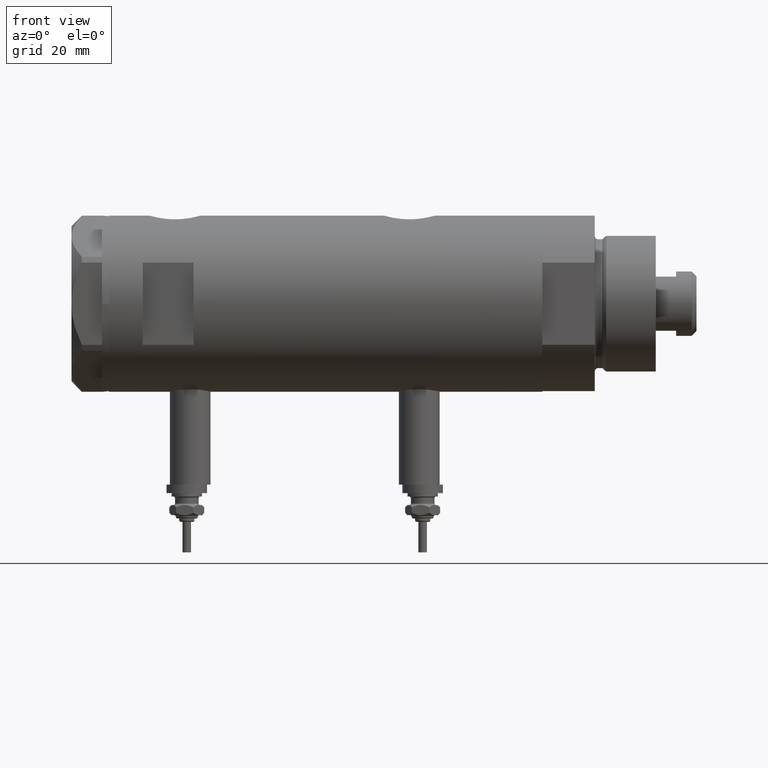
[diagram: clean part render]
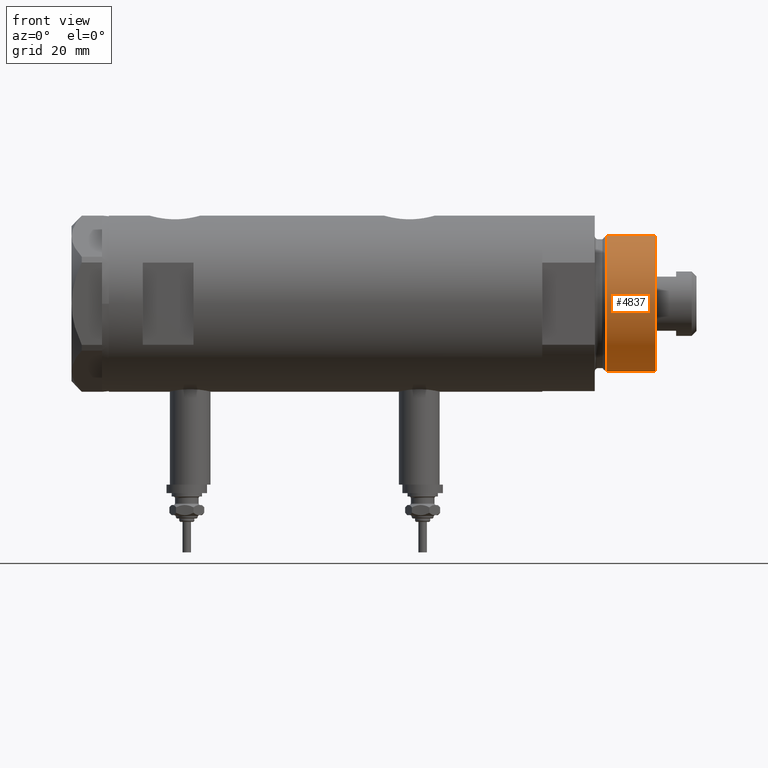
[diagram: same view with one face highlighted and labeled with its STEP entity id]
A machine part, front view. The second image highlights one B-rep face of the part: STEP entity #4837.
In plain terms, the highlighted cylindrical surface (partial cylindrical patch) has radius 20 mm, axis along (-1, -0, 0).
Its self-contained STEP definition (entity closure, byte-faithful):
#218 = DIRECTION ( 'NONE',  ( -0.000000000000000000, -0.000000000000000000, -1.000000000000000000 ) ) ;
#235 = CARTESIAN_POINT ( 'NONE',  ( 19.99999999999999645, 2.449293598294706119E-15, 33.50000000000000000 ) ) ;
#248 = AXIS2_PLACEMENT_3D ( 'NONE', #6227, #3251, #1264 ) ;
#356 = LINE ( 'NONE', #2860, #6182 ) ;
#717 = LINE ( 'NONE', #235, #1039 ) ;
#1036 = EDGE_CURVE ( 'NONE', #2810, #4873, #717, .T. ) ;
#1039 = VECTOR ( 'NONE', #2181, 1000.000000000000000 ) ;
#1205 = CARTESIAN_POINT ( 'NONE',  ( 19.99999999999999645, 2.449293598294706119E-15, 33.50000000000000000 ) ) ;
#1243 = CARTESIAN_POINT ( 'NONE',  ( 0.000000000000000000, 0.000000000000000000, 18.87384048104053846 ) ) ;
#1264 = DIRECTION ( 'NONE',  ( 1.000000000000000000, 0.000000000000000000, 0.000000000000000000 ) ) ;
#1686 = CARTESIAN_POINT ( 'NONE',  ( -19.99999999999999645, 0.000000000000000000, 33.50000000000000000 ) ) ;
#1690 = AXIS2_PLACEMENT_3D ( 'NONE', #2652, #218, #2165 ) ;
#1832 = CARTESIAN_POINT ( 'NONE',  ( -19.99999999999999645, 0.000000000000000000, 18.87384048104053846 ) ) ;
#2028 = VERTEX_POINT ( 'NONE', #1832 ) ;
#2141 = ORIENTED_EDGE ( 'NONE', *, *, #1036, .F. ) ;
#2165 = DIRECTION ( 'NONE',  ( -1.000000000000000000, 0.000000000000000000, 0.000000000000000000 ) ) ;
#2181 = DIRECTION ( 'NONE',  ( -0.000000000000000000, -0.000000000000000000, -1.000000000000000000 ) ) ;
#2196 = FACE_OUTER_BOUND ( 'NONE', #3945, .T. ) ;
#2510 = AXIS2_PLACEMENT_3D ( 'NONE', #1243, #4215, #3644 ) ;
#2613 = ORIENTED_EDGE ( 'NONE', *, *, #2935, .F. ) ;
#2652 = CARTESIAN_POINT ( 'NONE',  ( 0.000000000000000000, 0.000000000000000000, 33.50000000000000000 ) ) ;
#2749 = VERTEX_POINT ( 'NONE', #1686 ) ;
#2810 = VERTEX_POINT ( 'NONE', #1205 ) ;
#2860 = CARTESIAN_POINT ( 'NONE',  ( -19.99999999999999645, 0.000000000000000000, 33.50000000000000000 ) ) ;
#2935 = EDGE_CURVE ( 'NONE', #2749, #2810, #5551, .T. ) ;
#3251 = DIRECTION ( 'NONE',  ( 0.000000000000000000, 0.000000000000000000, 1.000000000000000000 ) ) ;
#3644 = DIRECTION ( 'NONE',  ( 1.000000000000000000, 0.000000000000000000, 0.000000000000000000 ) ) ;
#3688 = ORIENTED_EDGE ( 'NONE', *, *, #4388, .T. ) ;
#3945 = EDGE_LOOP ( 'NONE', ( #2141, #2613, #4469, #3688 ) ) ;
#4108 = CARTESIAN_POINT ( 'NONE',  ( 19.99999999999999645, 2.449293598294706119E-15, 18.87384048104053846 ) ) ;
#4171 = CYLINDRICAL_SURFACE ( 'NONE', #1690, 19.99999999999999645 ) ;
#4215 = DIRECTION ( 'NONE',  ( -0.000000000000000000, -0.000000000000000000, 1.000000000000000000 ) ) ;
#4388 = EDGE_CURVE ( 'NONE', #2028, #4873, #5268, .T. ) ;
#4469 = ORIENTED_EDGE ( 'NONE', *, *, #6308, .T. ) ;
#4803 = DIRECTION ( 'NONE',  ( -0.000000000000000000, -0.000000000000000000, -1.000000000000000000 ) ) ;
#4837 = ADVANCED_FACE ( 'NONE', ( #2196 ), #4171, .T. ) ;
#4873 = VERTEX_POINT ( 'NONE', #4108 ) ;
#5268 = CIRCLE ( 'NONE', #2510, 19.99999999999999645 ) ;
#5551 = CIRCLE ( 'NONE', #248, 19.99999999999999645 ) ;
#6182 = VECTOR ( 'NONE', #4803, 1000.000000000000000 ) ;
#6227 = CARTESIAN_POINT ( 'NONE',  ( 0.000000000000000000, 0.000000000000000000, 33.50000000000000000 ) ) ;
#6308 = EDGE_CURVE ( 'NONE', #2749, #2028, #356, .T. ) ;